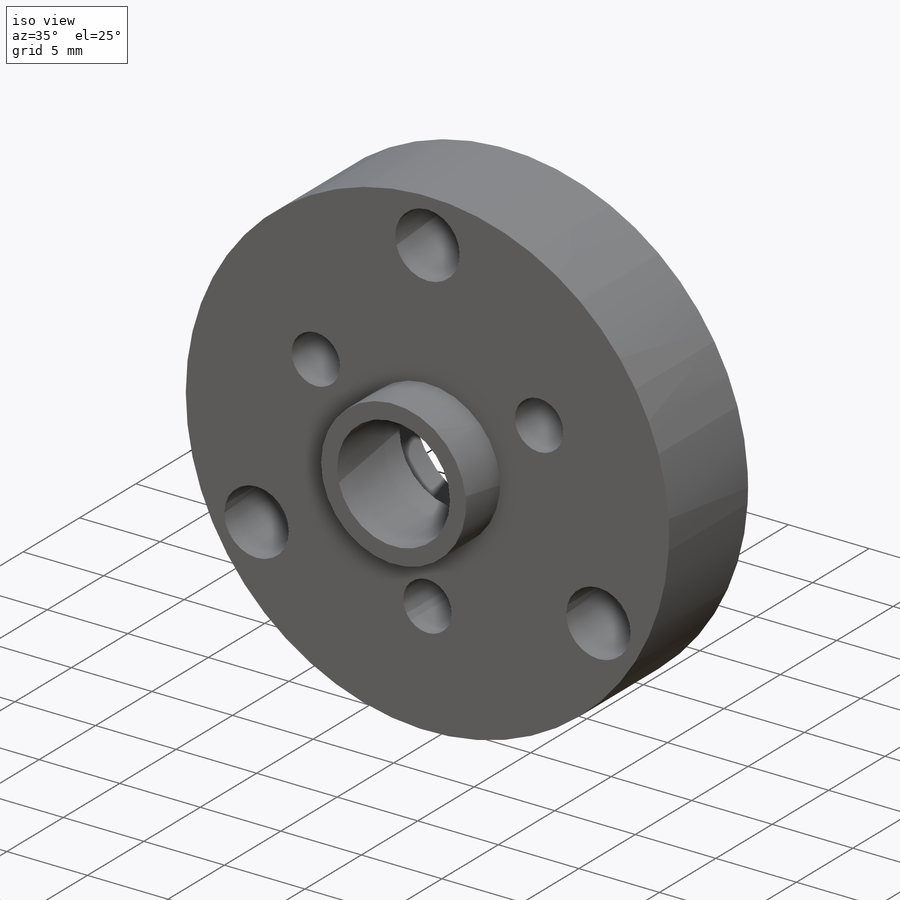
[diagram: iso view]
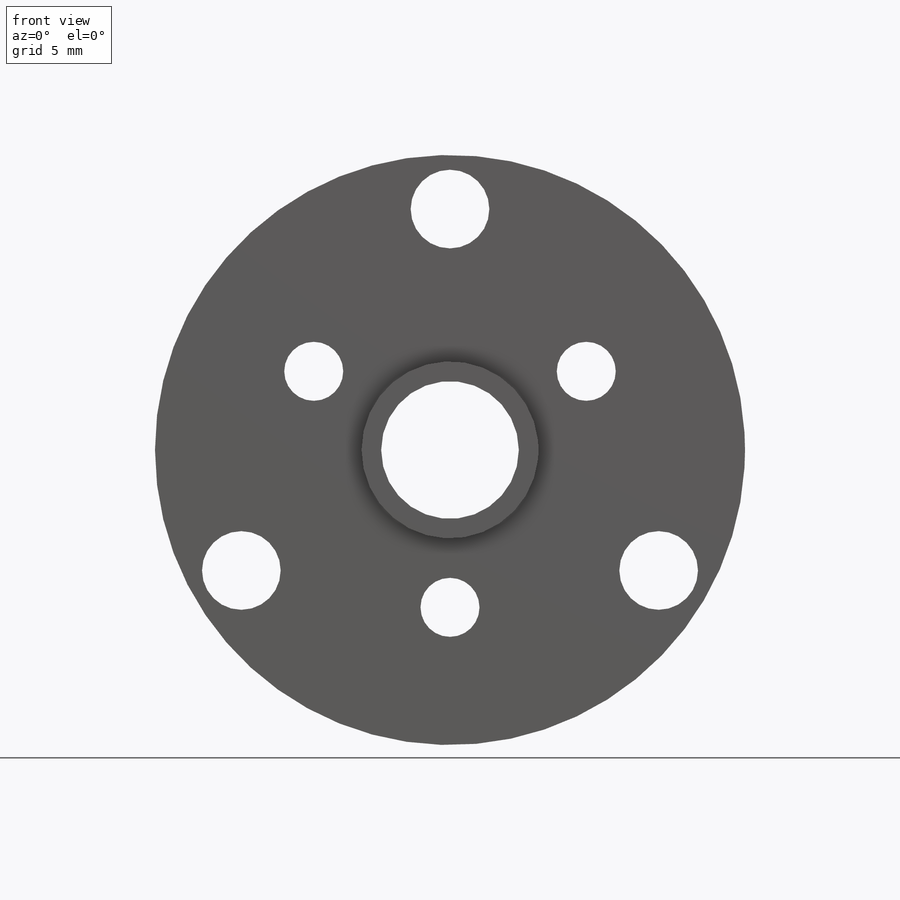
[diagram: front view]
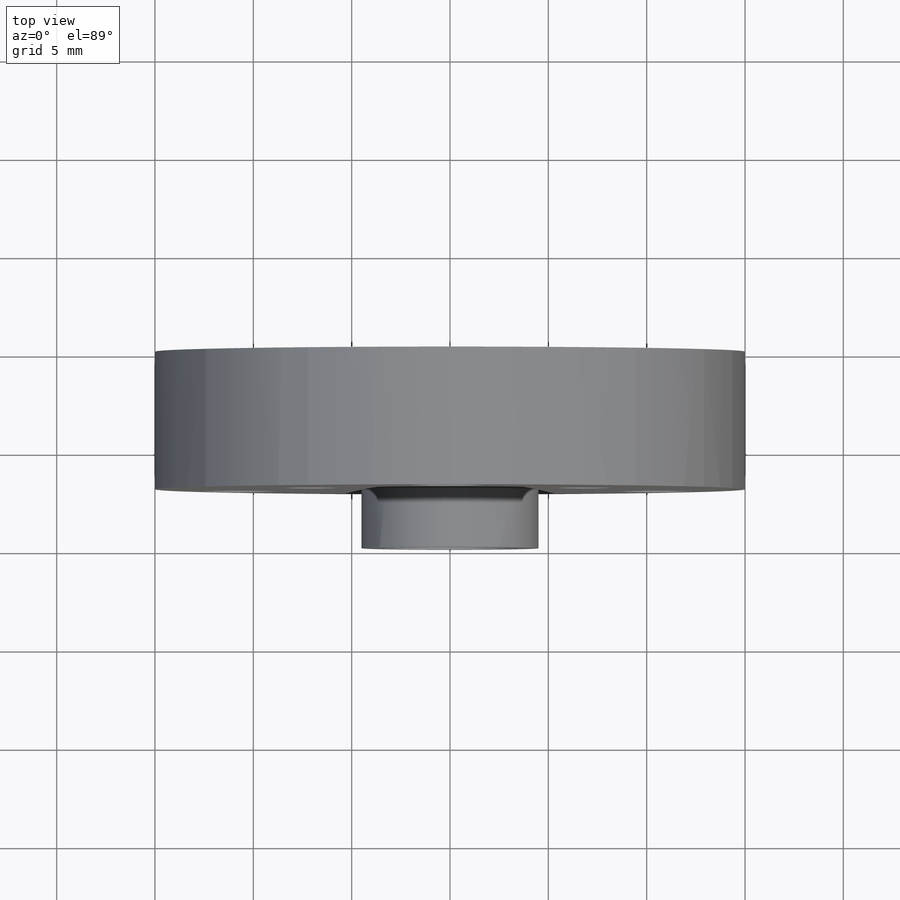
[diagram: top view]
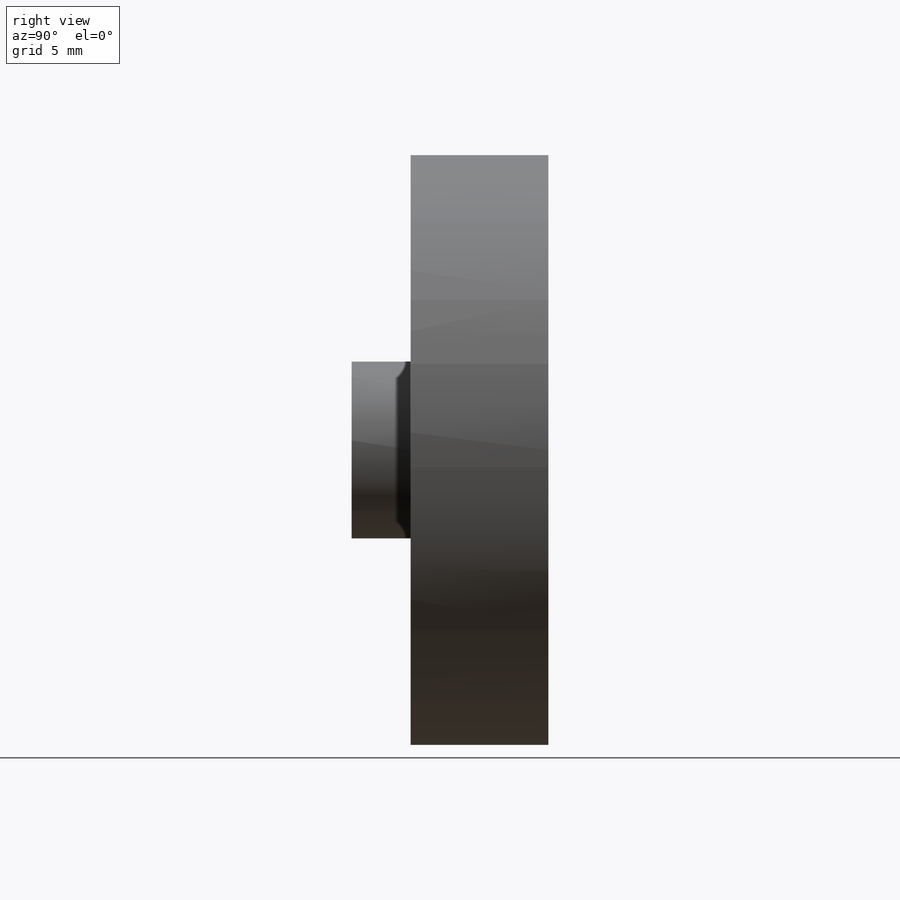
[diagram: right view]
SOLIDWORKS PART (.sldprt)
format: sldprt  version: not decoded by parser v0  size: 154,112 bytes
history: native  units: mm
features: sketch x4, plane x3, extrude x2, cut_extrude x2, material x1 (+11 scaffold rows collapsed)
feature tree (23):
  scaffold x11  (default folders/planes/origin — collapsed)
  material  "Matériau <non spécifié>"
  plane  "Plan de face"
  plane  "Plan de dessus"
  plane  "Plan de droite"
  sketch  "Esquisse1"  dims[c1.D1=~1.527344mm c1.D2=7.0mm c1.D3=~0.84177mm c2.D1=12.25mm c2.D3=8.0mm]
  extrude  "Extrusion1"  Depth=7mm
  sketch  "Esquisse2"  dims[D1=3.0mm]
  extrude  "Extrusion2"  Depth=3mm
  sketch  "Esquisse3"  dims[D1=8.0mm]
  cut_extrude  "Extrusion3"  Depth=4mm
  sketch  "Esquisse4"  dims[D1=7.0mm]
  cut_extrude  "Extrusion4"  Depth=0.5mm
decode coverage: 8 of 8 modeling features carry decoded parameters
note: ~ marks probable driven/reference dimensions
note: suppression state not decoded; provenance and decode notes live in map.json
